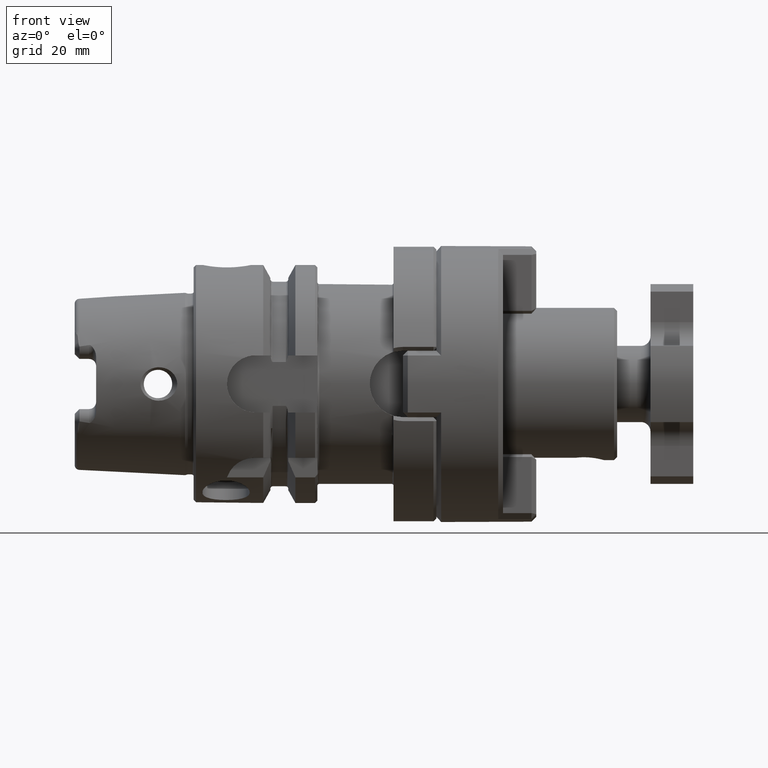
[diagram: clean part render]
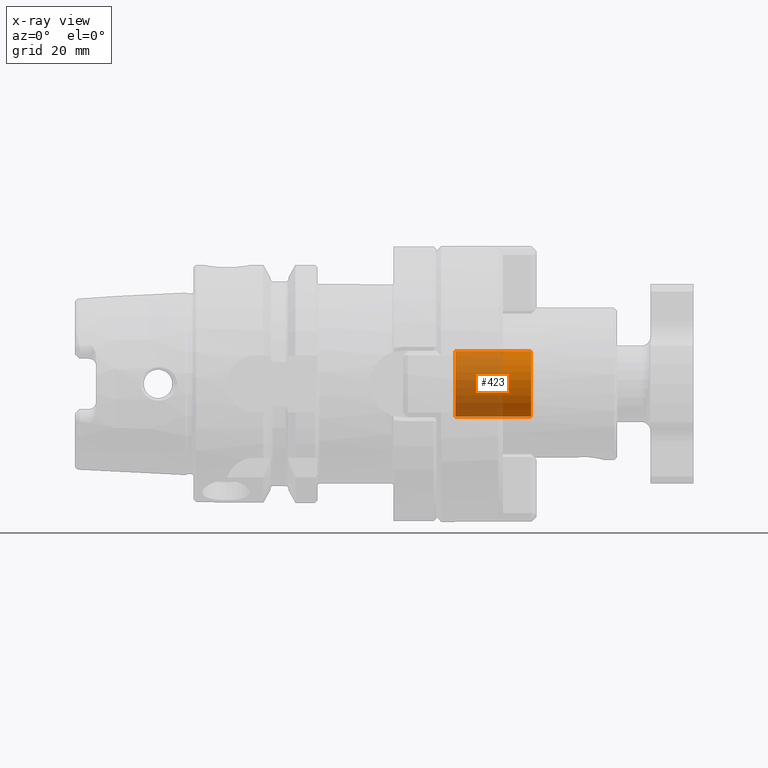
[diagram: x-ray — body ghosted, one internal face saturated and labeled with its STEP entity id]
A machine part, front view, then the same camera in x-ray: the body is ghosted and one INTERNAL B-rep face — a face not visible from any outside direction — is saturated and labeled: STEP entity #423.
In plain terms, the highlighted cylindrical surface (bore or boss wall) has radius 6.9175 mm, axis along (1, -0, -0).
Its self-contained STEP definition (entity closure, byte-faithful):
#423 = ADVANCED_FACE( '', ( #879, #880 ), #881, .F. );
#879 = FACE_OUTER_BOUND( '', #1479, .T. );
#880 = FACE_OUTER_BOUND( '', #1480, .T. );
#881 = CYLINDRICAL_SURFACE( '', #1481, 6.91750000000000 );
#1479 = EDGE_LOOP( '', ( #2808 ) );
#1480 = EDGE_LOOP( '', ( #2809 ) );
#1481 = AXIS2_PLACEMENT_3D( '', #2810, #2811, #2812 );
#2808 = ORIENTED_EDGE( '', *, *, #3426, .T. );
#2809 = ORIENTED_EDGE( '', *, *, #3540, .T. );
#2810 = CARTESIAN_POINT( '', ( 89.0000000000000, 0.000000000000000, 3.67273485929464E-015 ) );
#2811 = DIRECTION( '', ( 1.00000000000000, -0.000000000000000, -0.000000000000000 ) );
#2812 = DIRECTION( '', ( 0.000000000000000, 0.000000000000000, -1.00000000000000 ) );
#3426 = EDGE_CURVE( '', #4332, #4332, #4333, .T. );
#3540 = EDGE_CURVE( '', #4517, #4517, #4518, .T. );
#4332 = VERTEX_POINT( '', #6311 );
#4333 = CIRCLE( '', #6312, 6.91750000000000 );
#4517 = VERTEX_POINT( '', #6605 );
#4518 = CIRCLE( '', #6606, 6.91750000000000 );
#6311 = CARTESIAN_POINT( '', ( 70.9175000000000, 0.000000000000000, -6.91750000000000 ) );
#6312 = AXIS2_PLACEMENT_3D( '', #7800, #7801, #7802 );
#6605 = CARTESIAN_POINT( '', ( 55.0000000000000, 0.000000000000000, 6.91750000000000 ) );
#6606 = AXIS2_PLACEMENT_3D( '', #7919, #7920, #7921 );
#7800 = CARTESIAN_POINT( '', ( 70.9175000000000, 0.000000000000000, 0.000000000000000 ) );
#7801 = DIRECTION( '', ( 1.00000000000000, 0.000000000000000, 0.000000000000000 ) );
#7802 = DIRECTION( '', ( 0.000000000000000, 0.000000000000000, -1.00000000000000 ) );
#7919 = CARTESIAN_POINT( '', ( 55.0000000000000, 0.000000000000000, 3.67273485929464E-015 ) );
#7920 = DIRECTION( '', ( -1.00000000000000, 0.000000000000000, 0.000000000000000 ) );
#7921 = DIRECTION( '', ( 0.000000000000000, 0.000000000000000, 1.00000000000000 ) );